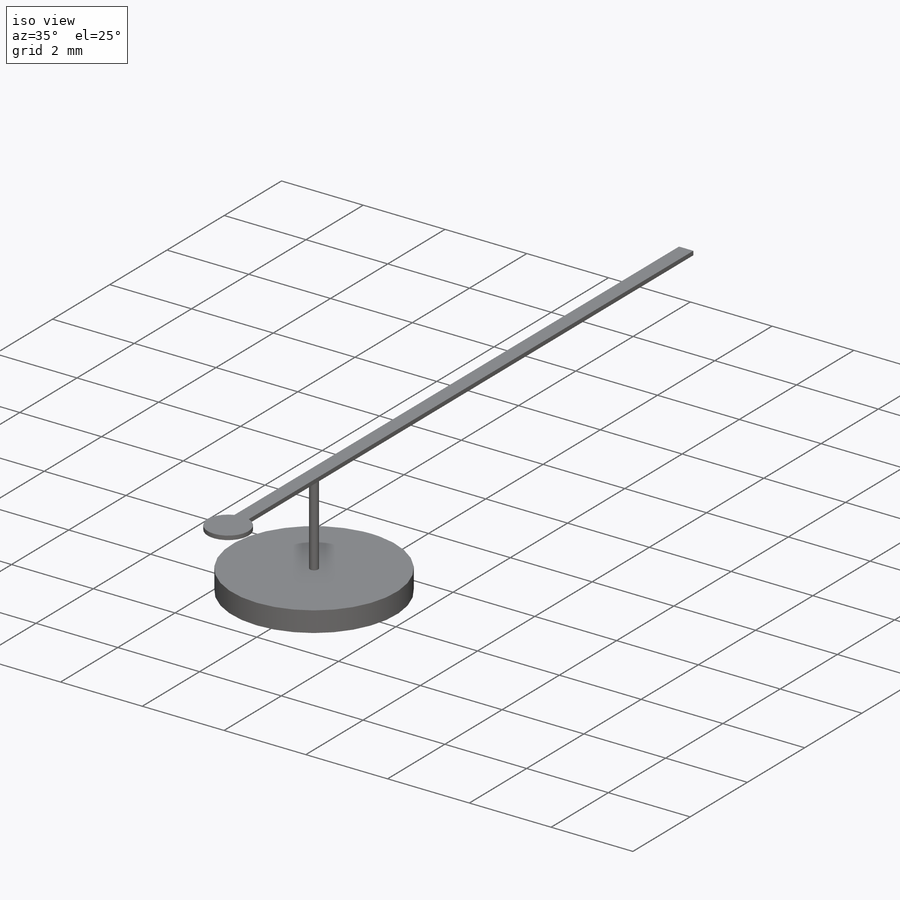
[diagram: iso view]
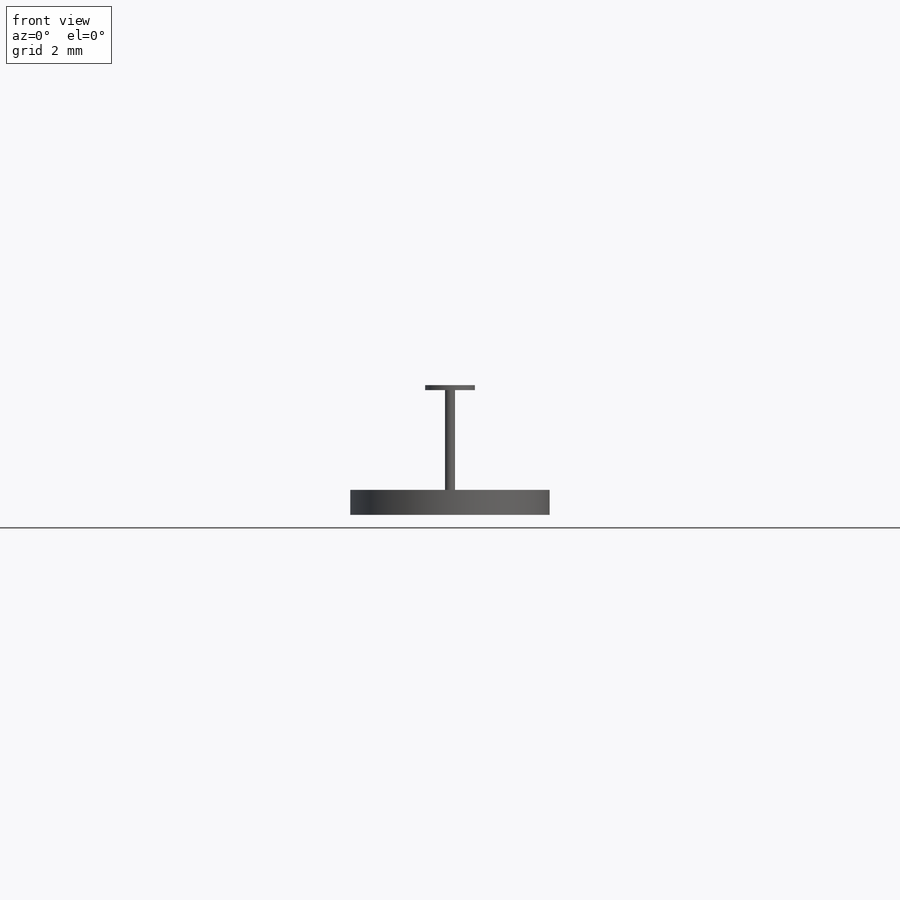
[diagram: front view]
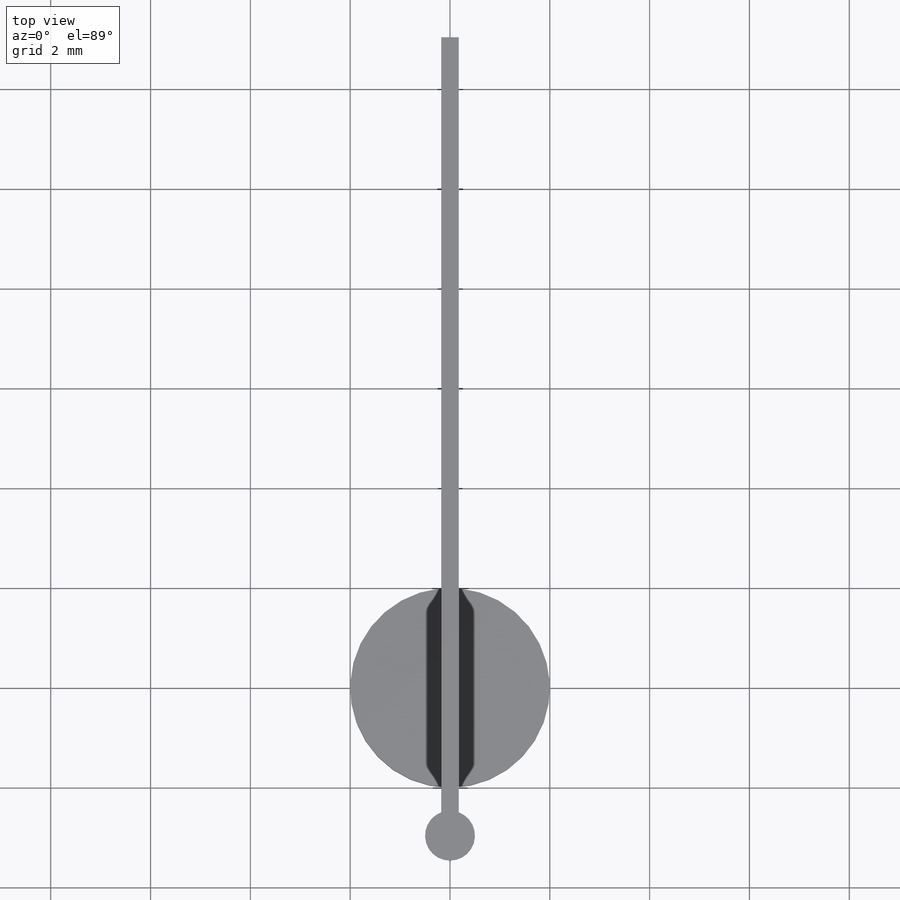
[diagram: top view]
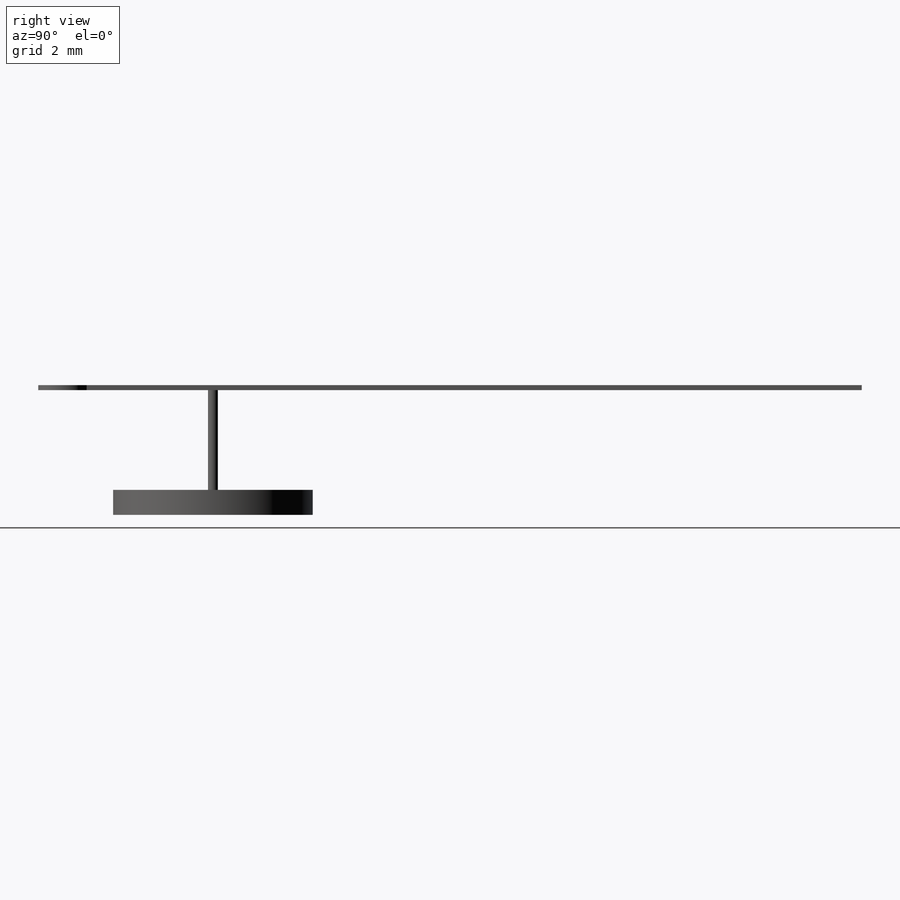
[diagram: right view]
SOLIDWORKS PART (.sldprt)
format: sldprt  version: not decoded by parser v0  size: 157,696 bytes
history: native  units: mm
features: sketch x3, extrude x3, material x1 (+13 scaffold rows collapsed)
feature tree (20):
  scaffold x13  (default folders/planes/origin — collapsed)
  material  "Matériau <non spécifié>"
  sketch  "Sketch1"  dims[c1.D1=0.1mm c1.D2=1.0mm c1.D4=1.0mm c1.D3=2.5mm c2.D2=16.0mm c2.D4=0.05mm c2.D1=~165.772074mm c3.D1=~179.641906deg c4.D1=0.5mm c4.D3=0.5mm c4.D5=0.35mm c4.D6=~165.772074mm c5.D6=~179.462868deg c6.D6=~165.772074mm c6.D5=0.35mm c6.D2=0.175mm c6.D4=0.175mm c7.D2=0.175mm c7.D4=13.0mm c7.D5=~2.531625mm c7.D6=3.0mm c8.D5=~2.531625mm]
  extrude  "Boss-Extrude1"  Depth=0.1mm
  sketch  "Sketch2"  dims[D1=0.2mm]
  extrude  "Boss-Extrude2"  Depth=2mm
  sketch  "Sketch3"  dims[D1=4.0mm]
  extrude  "Boss-Extrude3"  Depth=0.5mm
decode coverage: 6 of 6 modeling features carry decoded parameters
note: ~ marks probable driven/reference dimensions
note: suppression state not decoded; provenance and decode notes live in map.json
